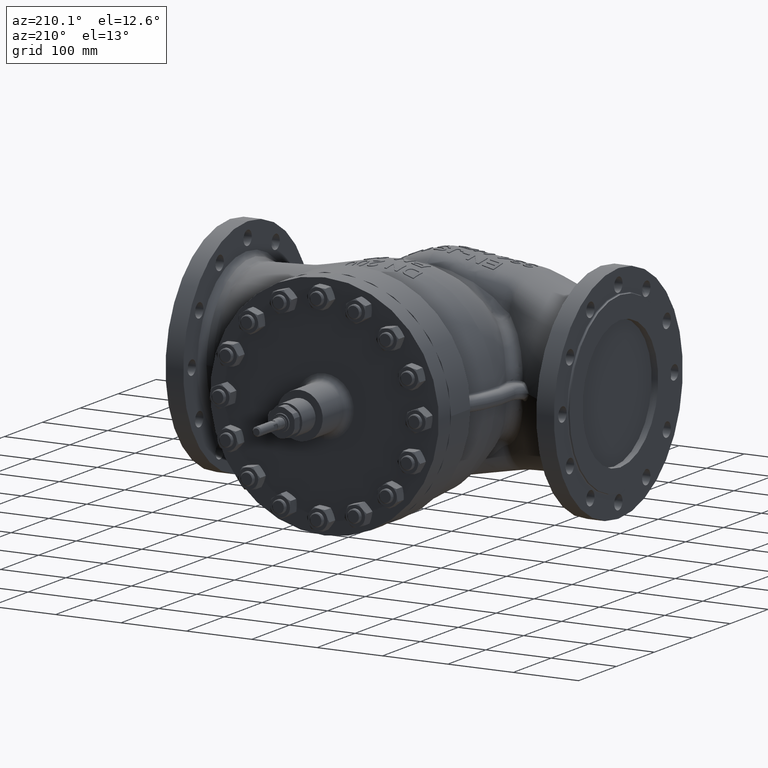
[diagram: clean part render]
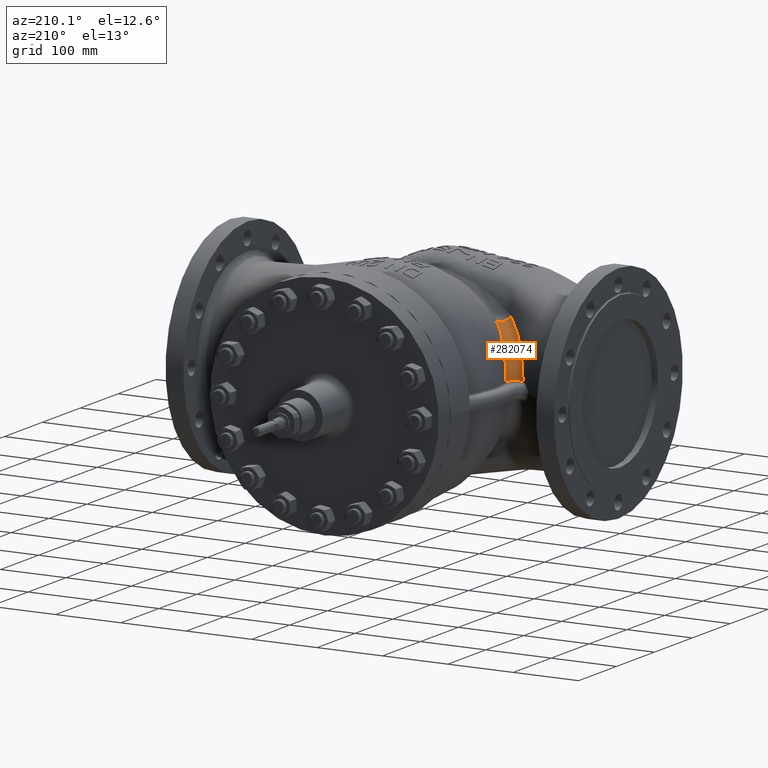
[diagram: same view with one face highlighted and labeled with its STEP entity id]
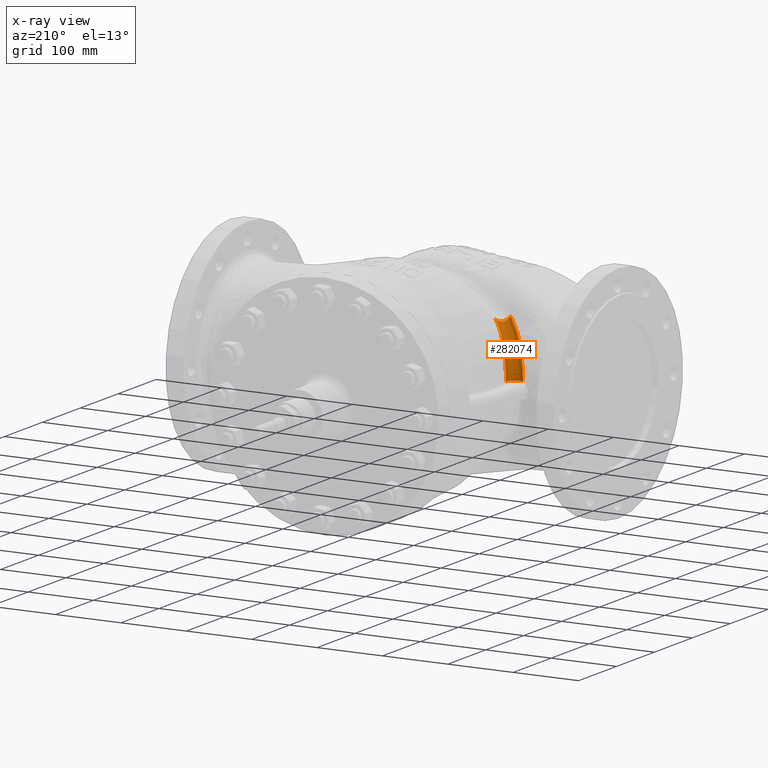
[diagram: x-ray of the same camera — body ghosted, the highlighted face saturated]
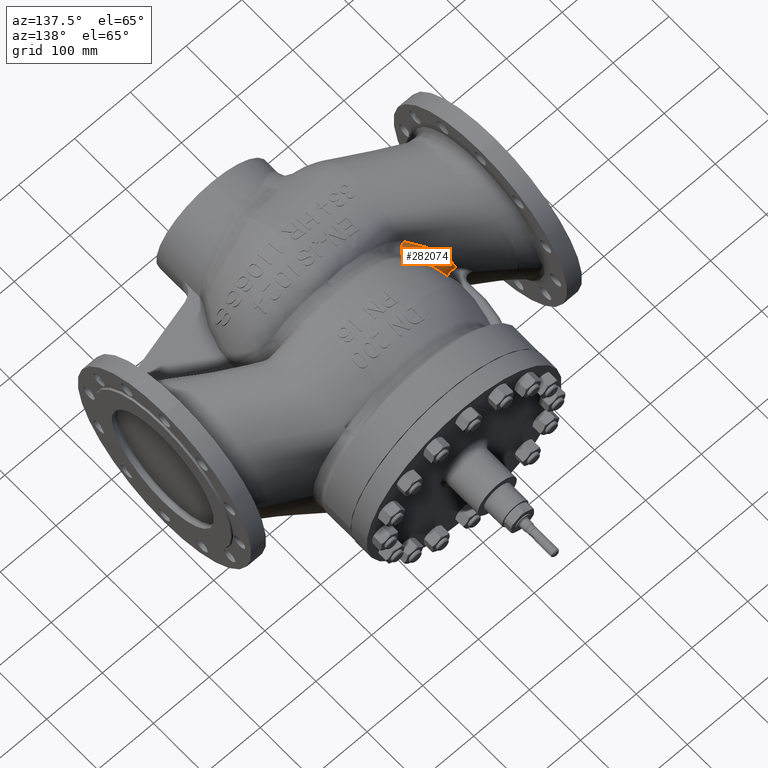
[diagram: same view with one face highlighted and labeled with its STEP entity id]
A machine part, auxiliary view. The second image highlights one B-rep face of the part: STEP entity #282074.
The next image is the same camera in x-ray: the body ghosted, the highlighted face saturated — about 0% of this face is hidden behind the body in this view.
A second angle (auxiliary view) of the same face is appended — the face is thin or edge-on in the first view.
In plain terms, the highlighted face is a freeform B-spline surface patch.
Its self-contained STEP definition (entity closure, byte-faithful):
#1215 = CARTESIAN_POINT ( 'NONE',  ( -180.3479766835050100, 50.38715588373963800, 13.28816058952758400 ) ) ;
#2176 = CARTESIAN_POINT ( 'NONE',  ( -159.7834420127899800, 60.20306548285637400, 22.08467995966791300 ) ) ;
#3145 = CARTESIAN_POINT ( 'NONE',  ( -153.2054179732000700, 29.33816680043337800, 19.33845226794689200 ) ) ;
#3487 = CARTESIAN_POINT ( 'NONE',  ( -144.1266888484710500, 9.991148496980958500, 78.27925038295146000 ) ) ;
#4107 = CARTESIAN_POINT ( 'NONE',  ( -171.8155502241295700, 39.32460806516679200, 43.40238094748084300 ) ) ;
#4440 = CARTESIAN_POINT ( 'NONE',  ( -175.1186694830489000, 43.48960524587761300, 35.23638534196722100 ) ) ;
#4626 = ORIENTED_EDGE ( 'NONE', *, *, #18092, .T. ) ;
#5063 = CARTESIAN_POINT ( 'NONE',  ( -143.3631512330945800, 39.79322070804398200, 60.21054218344698900 ) ) ;
#6007 = CARTESIAN_POINT ( 'NONE',  ( -138.5779072110121600, 15.59329231150622900, 48.90391738290375700 ) ) ;
#6943 = CARTESIAN_POINT ( 'NONE',  ( -138.6470128244672800, 5.139872020293034400, 82.49197622258429900 ) ) ;
#7589 = CARTESIAN_POINT ( 'NONE',  ( -168.8684930671474300, 48.52494461211533400, 12.40934267990686000 ) ) ;
#8554 = CARTESIAN_POINT ( 'NONE',  ( -178.3430433808405300, 49.12611881680794600, 12.72877746141875500 ) ) ;
#10481 = CARTESIAN_POINT ( 'NONE',  ( -153.3875262802788500, 51.68104859443891300, 42.86651872847378500 ) ) ;
#11415 = CARTESIAN_POINT ( 'NONE',  ( -117.9340538589789800, 15.67307692307691100, 83.80810351950101700 ) ) ;
#18092 = EDGE_CURVE ( 'NONE', #58486, #269337, #18992, .T. ) ;
#18890 = CARTESIAN_POINT ( 'NONE',  ( -162.4809874218565000, 53.92860186335204300, 12.45050690650131600 ) ) ;
#18992 = CIRCLE ( 'NONE', #157887, 12.00000000000000200 ) ;
#23397 = CARTESIAN_POINT ( 'NONE',  ( -155.2094688941950300, 30.87142330802406000, 7.917846680196541700 ) ) ;
#24353 = CARTESIAN_POINT ( 'NONE',  ( -178.7799347780740800, 48.27349888101833400, 22.56489009037397500 ) ) ;
#25309 = CARTESIAN_POINT ( 'NONE',  ( -156.8327896092210400, 56.18681528265374700, 33.51273670518541800 ) ) ;
#25643 = CARTESIAN_POINT ( 'NONE',  ( -152.0743515830948500, 17.52975695065136500, 71.15273135393297800 ) ) ;
#26262 = CARTESIAN_POINT ( 'NONE',  ( -148.4070973426689500, 24.92606653098632600, 33.02878223004302100 ) ) ;
#26598 = CARTESIAN_POINT ( 'NONE',  ( -176.1098677754228300, 44.76502405007728000, 32.35386135223410500 ) ) ;
#27220 = CARTESIAN_POINT ( 'NONE',  ( -160.4465939503597800, 26.22247780060055100, 61.69578560818541700 ) ) ;
#28170 = CARTESIAN_POINT ( 'NONE',  ( -136.2515450962695000, 32.22387583878638400, 68.82356084104016200 ) ) ;
#29114 = CARTESIAN_POINT ( 'NONE',  ( -122.4128148510222600, 1.428652267640010000, 64.02284708773029800 ) ) ;
#29753 = CARTESIAN_POINT ( 'NONE',  ( -170.6258148928858700, 48.04476294129655400, 12.44471879218044400 ) ) ;
#30703 = CARTESIAN_POINT ( 'NONE',  ( -179.9150564730884400, 50.07371466241600900, 12.81166801907863800 ) ) ;
#30875 = CARTESIAN_POINT ( 'NONE',  ( -132.4516614370879800, 0.001687900306969816700, 86.63877724973102100 ) ) ;
#31680 = CARTESIAN_POINT ( 'NONE',  ( -160.6795266716969200, 61.45711379880834400, 16.82380083184206800 ) ) ;
#32639 = CARTESIAN_POINT ( 'NONE',  ( -148.5292340386872400, 45.70198267988750000, 52.44726930657518700 ) ) ;
#37479 = VERTEX_POINT ( 'NONE', #88756 ) ;
#40133 = CARTESIAN_POINT ( 'NONE',  ( -161.2007471577244400, 62.19297423156112400, 12.76785714285713300 ) ) ;
#41071 = CARTESIAN_POINT ( 'NONE',  ( -163.4906663851018600, 52.40968864994547300, 12.41317957880236200 ) ) ;
#42731 = CARTESIAN_POINT ( 'NONE',  ( -155.3180422184609600, 30.93905565759273200, 6.718585138934788100 ) ) ;
#45575 = CARTESIAN_POINT ( 'NONE',  ( -160.7873182583042500, 61.60883678463885400, 16.08000321875246600 ) ) ;
#45912 = CARTESIAN_POINT ( 'NONE',  ( -117.9340538589789800, 15.67307692307691100, 83.80810351950101700 ) ) ;
#46543 = CARTESIAN_POINT ( 'NONE',  ( -154.1059312151297700, 30.07912355717853000, 15.38228189510913400 ) ) ;
#47499 = CARTESIAN_POINT ( 'NONE',  ( -175.4698141465642000, 43.93976179808608900, 34.24769836162699500 ) ) ;
#47839 = CARTESIAN_POINT ( 'NONE',  ( -158.1445311512953800, 23.75617767312099100, 64.53617280797728000 ) ) ;
#48461 = CARTESIAN_POINT ( 'NONE',  ( -148.7024140470287500, 45.90786208504341900, 52.15156545383771900 ) ) ;
#48792 = CARTESIAN_POINT ( 'NONE',  ( -177.5906363416353000, 46.69679908961943200, 27.44464781388240500 ) ) ;
#49404 = CARTESIAN_POINT ( 'NONE',  ( -142.2516700723972500, 19.04693861859629700, 43.82450049138377300 ) ) ;
#50353 = CARTESIAN_POINT ( 'NONE',  ( -152.5683525912685400, 18.01779554282043000, 70.66485245563461600 ) ) ;
#51312 = CARTESIAN_POINT ( 'NONE',  ( -117.9340538589788700, 15.67307692307677600, 83.80810351950120200 ) ) ;
#51948 = CARTESIAN_POINT ( 'NONE',  ( -172.4510506716715400, 47.83568369276105900, 12.49405095766228000 ) ) ;
#53866 = CARTESIAN_POINT ( 'NONE',  ( -160.0298336935600800, 60.54658429733443400, 20.80090350936018600 ) ) ;
#54818 = CARTESIAN_POINT ( 'NONE',  ( -144.7366348036265200, 41.32545540039900100, 58.30644604353916800 ) ) ;
#58486 = VERTEX_POINT ( 'NONE', #30875 ) ;
#62847 = FACE_OUTER_BOUND ( 'NONE', #246393, .T. ) ;
#63213 = CARTESIAN_POINT ( 'NONE',  ( -164.2961564273467700, 51.49798719669892200, 12.39714917511678000 ) ) ;
#67726 = CARTESIAN_POINT ( 'NONE',  ( -179.9078691246944900, 49.79041111488193400, 16.42980403514777200 ) ) ;
#68676 = CARTESIAN_POINT ( 'NONE',  ( -158.4635875605569300, 58.38491057841316900, 27.89189479009171500 ) ) ;
#69013 = CARTESIAN_POINT ( 'NONE',  ( -132.4516614370879800, 0.001687900306969816700, 86.63877724973102100 ) ) ;
#69640 = CARTESIAN_POINT ( 'NONE',  ( -152.6626358064787300, 28.86840829936241400, 21.36799606240467900 ) ) ;
#69984 = CARTESIAN_POINT ( 'NONE',  ( -161.5669759651073600, 27.43681410477034500, 60.26223010793162900 ) ) ;
#70608 = CARTESIAN_POINT ( 'NONE',  ( -166.3837186693607200, 32.83865420681701200, 53.36715298105102100 ) ) ;
#70934 = CARTESIAN_POINT ( 'NONE',  ( -179.0393722107208400, 48.62087443524468000, 21.34507913836189300 ) ) ;
#71556 = CARTESIAN_POINT ( 'NONE',  ( -141.7888832083440600, 38.06439177008903100, 62.29234059785221700 ) ) ;
#72507 = CARTESIAN_POINT ( 'NONE',  ( -132.2129688685410300, 9.813951181967002700, 55.91077812952492800 ) ) ;
#73461 = CARTESIAN_POINT ( 'NONE',  ( -132.4516614370878400, 0.001687900306867468100, 86.63877724973114900 ) ) ;
#74098 = CARTESIAN_POINT ( 'NONE',  ( -174.2737362863038900, 47.90678598658370600, 12.55470677498293400 ) ) ;
#76030 = CARTESIAN_POINT ( 'NONE',  ( -158.7872049129185000, 58.82830868330283600, 26.59822500870177800 ) ) ;
#76977 = CARTESIAN_POINT ( 'NONE',  ( -141.6551727414009700, 37.91302619315927600, 62.48305714513531900 ) ) ;
#84463 = CARTESIAN_POINT ( 'NONE',  ( -161.0621320534325800, 58.25435361572336000, 12.59891942707162800 ) ) ;
#85396 = CARTESIAN_POINT ( 'NONE',  ( -164.9595570097008000, 50.85873722524208800, 12.38914606154176700 ) ) ;
#88756 = CARTESIAN_POINT ( 'NONE',  ( -180.3976527844518500, 50.45481075082450000, 12.83988410853364400 ) ) ;
#89897 = CARTESIAN_POINT ( 'NONE',  ( -155.0049800758213500, 30.73722982758867800, 9.744097704359436600 ) ) ;
#90857 = CARTESIAN_POINT ( 'NONE',  ( -177.2982787422711500, 46.31180583757309700, 28.49881736111096600 ) ) ;
#91813 = CARTESIAN_POINT ( 'NONE',  ( -154.9800223921489200, 53.73438469538745500, 38.99895523456537900 ) ) ;
#92153 = CARTESIAN_POINT ( 'NONE',  ( -165.8203446573303100, 32.18921040611650900, 54.25361503619170400 ) ) ;
#92778 = CARTESIAN_POINT ( 'NONE',  ( -144.7833596141483700, 21.45671205143820300, 39.84480481376211000 ) ) ;
#93121 = CARTESIAN_POINT ( 'NONE',  ( -179.7950724220397700, 49.63795024696928200, 17.14087350314103700 ) ) ;
#93727 = CARTESIAN_POINT ( 'NONE',  ( -158.6998124076915800, 24.34999173351638300, 63.85626781705022400 ) ) ;
#93914 = CARTESIAN_POINT ( 'NONE',  ( -126.5110759578138000, 9.903846153846140900, 89.90323832091930000 ) ) ;
#94671 = CARTESIAN_POINT ( 'NONE',  ( -128.9009625690894700, 25.11987957820425200, 75.78490915468468400 ) ) ;
#96262 = CARTESIAN_POINT ( 'NONE',  ( -175.7723256625213300, 48.18767849553180600, 12.61297781198906200 ) ) ;
#98204 = CARTESIAN_POINT ( 'NONE',  ( -157.5149021586219400, 57.10096359859005600, 31.28552426226215000 ) ) ;
#99146 = CARTESIAN_POINT ( 'NONE',  ( -136.1434096329511200, 32.11506899093920000, 68.93631935950256200 ) ) ;
#106626 = CARTESIAN_POINT ( 'NONE',  ( -161.2153844611611100, 57.34731769123676800, 12.56403828059906000 ) ) ;
#107551 = CARTESIAN_POINT ( 'NONE',  ( -166.1525353773770900, 49.91039580817884800, 12.38421036985466700 ) ) ;
#111115 = CARTESIAN_POINT ( 'NONE',  ( -180.4684105633748200, 50.55108137989010000, 12.23815342538768600 ) ) ;
#112076 = CARTESIAN_POINT ( 'NONE',  ( -160.1566499780059600, 60.72356865476073300, 20.10771063331999600 ) ) ;
#113014 = CARTESIAN_POINT ( 'NONE',  ( -153.3712329411204100, 29.47851198196893600, 18.67039743029727800 ) ) ;
#113975 = CARTESIAN_POINT ( 'NONE',  ( -173.3944806279652900, 41.29275387168072300, 39.86353591752360600 ) ) ;
#114309 = CARTESIAN_POINT ( 'NONE',  ( -171.3444843253481600, 38.74584922318384600, 44.39114917251068700 ) ) ;
#114931 = CARTESIAN_POINT ( 'NONE',  ( -144.8946588526381200, 41.50411991652802600, 58.07833206339863400 ) ) ;
#115259 = CARTESIAN_POINT ( 'NONE',  ( -180.2673602991405100, 50.27761197585680000, 13.92127234249587500 ) ) ;
#115870 = CARTESIAN_POINT ( 'NONE',  ( -140.8974338456176000, 17.76874810993552200, 45.76124957179435900 ) ) ;
#116056 = DIRECTION ( 'NONE',  ( 0.6298090491019998600, 0.7767499994652300500, 0.0000000000000000000 ) ) ;
#116822 = CARTESIAN_POINT ( 'NONE',  ( -144.4658471083690800, 10.29819659513314500, 78.00582562064542500 ) ) ;
#117458 = CARTESIAN_POINT ( 'NONE',  ( -167.1951309686367000, 49.28632024009867500, 12.38954670776101200 ) ) ;
#118413 = CARTESIAN_POINT ( 'NONE',  ( -176.6564543434418500, 48.44097392623759600, 12.65045676932752400 ) ) ;
#119397 = CARTESIAN_POINT ( 'NONE',  ( -161.2007471577244400, 62.19297423156112400, 12.76785714285713300 ) ) ;
#120344 = CARTESIAN_POINT ( 'NONE',  ( -156.6612831835422200, 55.95836037208317000, 34.04506522811832500 ) ) ;
#121292 = CARTESIAN_POINT ( 'NONE',  ( -128.8371863647057000, 25.06153938051620500, 75.83808005664320700 ) ) ;
#128768 = CARTESIAN_POINT ( 'NONE',  ( -161.5119861094113400, 56.16894829944750700, 12.52113149879662800 ) ) ;
#133255 = CARTESIAN_POINT ( 'NONE',  ( -155.2676067744788200, 30.90802859945440400, 7.313063797390730000 ) ) ;
#134208 = CARTESIAN_POINT ( 'NONE',  ( -179.1991623019120000, 48.83512457342823900, 20.54498844587274000 ) ) ;
#134552 = CARTESIAN_POINT ( 'NONE',  ( -135.5097867521798200, 2.480334358670631900, 84.68534772320433000 ) ) ;
#135173 = CARTESIAN_POINT ( 'NONE',  ( -157.4053597618729700, 56.95347241952926300, 31.65604497229455900 ) ) ;
#135511 = CARTESIAN_POINT ( 'NONE',  ( -138.4560194172017900, 4.977574209977694500, 82.62610955185240900 ) ) ;
#136139 = CARTESIAN_POINT ( 'NONE',  ( -150.7092810535071700, 27.10087437089025300, 27.52011680339884600 ) ) ;
#136474 = CARTESIAN_POINT ( 'NONE',  ( -174.7691688291479600, 43.04334157817066900, 36.18770273812499700 ) ) ;
#137089 = CARTESIAN_POINT ( 'NONE',  ( -162.1474245268140600, 28.07478190050257500, 59.48686818009286300 ) ) ;
#138037 = CARTESIAN_POINT ( 'NONE',  ( -138.5423560219365100, 34.57939891716546300, 66.31463115056736500 ) ) ;
#138987 = CARTESIAN_POINT ( 'NONE',  ( -125.0024815630177700, 3.587022821690302600, 62.12959871630799600 ) ) ;
#139617 = CARTESIAN_POINT ( 'NONE',  ( -168.0184218954939600, 48.87918205514639400, 12.39777632303738200 ) ) ;
#140574 = CARTESIAN_POINT ( 'NONE',  ( -177.7946741003423800, 48.86657245488488900, 12.70209069009589200 ) ) ;
#141557 = CARTESIAN_POINT ( 'NONE',  ( -161.0872965630092900, 62.03227091187000800, 13.78730171666112400 ) ) ;
#142498 = CARTESIAN_POINT ( 'NONE',  ( -154.8000919324024100, 53.50082043513030800, 39.45862092801324600 ) ) ;
#143432 = CARTESIAN_POINT ( 'NONE',  ( -120.8126671419195600, 18.00713124648774900, 81.96659679523774900 ) ) ;
#150934 = CARTESIAN_POINT ( 'NONE',  ( -162.1925436505034400, 54.47679422059725600, 12.46632465324018900 ) ) ;
#155434 = CARTESIAN_POINT ( 'NONE',  ( -161.0570266834559200, 61.98941832273513300, 14.03686753874897200 ) ) ;
#156392 = CARTESIAN_POINT ( 'NONE',  ( -154.5680245164042800, 30.43074691153953600, 12.83561455351727300 ) ) ;
#157342 = CARTESIAN_POINT ( 'NONE',  ( -176.1115541911709100, 44.76714351561506100, 32.34812990163739200 ) ) ;
#157679 = CARTESIAN_POINT ( 'NONE',  ( -146.8512705159721500, 12.50748792890716700, 75.99179693150814800 ) ) ;
#157887 = AXIS2_PLACEMENT_3D ( 'NONE', #93914, #248160, #116056 ) ;
#158307 = CARTESIAN_POINT ( 'NONE',  ( -150.4300239956703500, 47.99849291399700500, 49.02825346650348600 ) ) ;
#158642 = CARTESIAN_POINT ( 'NONE',  ( -175.7886879923503000, 44.35003082266880600, 33.32026099993839100 ) ) ;
#159264 = CARTESIAN_POINT ( 'NONE',  ( -142.6905347183500800, 19.46306459872356600, 43.16853078623709200 ) ) ;
#160215 = CARTESIAN_POINT ( 'NONE',  ( -155.1017366173000200, 20.57329640056231300, 68.04089001466859100 ) ) ;
#160889 = CARTESIAN_POINT ( 'NONE',  ( -161.2007471577244400, 62.19297423156112400, 12.76785714285713300 ) ) ;
#161156 = CARTESIAN_POINT ( 'NONE',  ( -120.8289539327463400, 18.02033699826826000, 81.95617780740474200 ) ) ;
#161795 = CARTESIAN_POINT ( 'NONE',  ( -169.4468068616371900, 48.33510196503042500, 12.41957429066289700 ) ) ;
#162752 = CARTESIAN_POINT ( 'NONE',  ( -179.4026409071396700, 49.72894343424744100, 12.78352279399643100 ) ) ;
#163736 = CARTESIAN_POINT ( 'NONE',  ( -160.9597695516135600, 61.85200380411414000, 14.80671181137630100 ) ) ;
#164692 = CARTESIAN_POINT ( 'NONE',  ( -150.2522506665664800, 47.78195563584944900, 49.36112491845760500 ) ) ;
#165735 =( BOUNDED_SURFACE ( )  B_SPLINE_SURFACE ( 3, 2, ( 
 ( #243178, #42731, #111115 ),
 ( #265389, #133255, #1215 ),
 ( #155434, #23397, #177652 ),
 ( #45575, #199844, #67726 ),
 ( #221990, #89897, #244145 ),
 ( #112076, #266349, #134208 ),
 ( #2176, #156392, #24353 ),
 ( #178611, #46543, #200800 ),
 ( #68676, #222944, #90857 ),
 ( #245101, #113014, #267301 ),
 ( #135173, #3145, #157342 ),
 ( #25309, #179568, #47499 ),
 ( #201754, #69640, #223909 ),
 ( #91813, #246063, #113975 ),
 ( #268265, #136139, #4107 ),
 ( #158307, #26262, #180528 ),
 ( #48461, #202703, #70608 ),
 ( #224864, #92778, #247020 ),
 ( #114931, #269228, #137089 ),
 ( #5063, #159264, #27220 ),
 ( #181479, #49404, #203657 ),
 ( #71556, #225815, #93727 ),
 ( #247976, #115870, #270166 ),
 ( #138037, #6007, #160215 ),
 ( #28170, #182422, #50353 ),
 ( #204606, #72507, #226772 ),
 ( #94671, #248919, #116822 ),
 ( #271110, #138987, #6943 ),
 ( #161156, #29114, #183385 ),
 ( #51312, #205558, #73461 ) ),
 .UNSPECIFIED., .F., .F., .F. ) 
 B_SPLINE_SURFACE_WITH_KNOTS ( ( 4, 2, 2, 2, 2, 2, 2, 2, 2, 2, 2, 2, 2, 2, 4 ),
 ( 3, 3 ),
 ( 0.1316212356389877000, 0.1349323193199942200, 0.1382434030010007700, 0.1448655703630138400, 0.1514877377250269400, 0.1547988214060334600, 0.1581099050870400100, 0.1713542398110661800, 0.1845985745350923200, 0.1912207418971054200, 0.1945318255781119400, 0.1978429092591184900, 0.2110872439831446600, 0.2243315787071708000, 0.2375759134311969700 ),
 ( 0.0000000000000000000, 1.000000000000000000 ),
 .UNSPECIFIED. ) 
 GEOMETRIC_REPRESENTATION_ITEM ( )  RATIONAL_B_SPLINE_SURFACE ( (
 ( 1.000000000000000000, 0.3476234255886354000, 1.000000000000000000),
 ( 1.000000000000000000, 0.3481642800209126000, 1.000000000000000000),
 ( 1.000000000000000000, 0.3487762868396809300, 1.000000000000000000),
 ( 1.000000000000000000, 0.3501196426599220700, 1.000000000000000000),
 ( 1.000000000000000000, 0.3508516694731247400, 1.000000000000000000),
 ( 1.000000000000000000, 0.3532158894621083000, 1.000000000000000000),
 ( 1.000000000000000000, 0.3550161560823484300, 1.000000000000000000),
 ( 1.000000000000000000, 0.3589982140685910000, 1.000000000000000000),
 ( 1.000000000000000000, 0.3611764129172128600, 1.000000000000000000),
 ( 1.000000000000000000, 0.3646558422352353400, 1.000000000000000000),
 ( 1.000000000000000000, 0.3658517025297524600, 1.000000000000000000),
 ( 1.000000000000000000, 0.3683066405815507700, 1.000000000000000000),
 ( 1.000000000000000000, 0.3695672578563885500, 1.000000000000000000),
 ( 1.000000000000000000, 0.3759894496026080500, 1.000000000000000000),
 ( 1.000000000000000000, 0.3814327869563349800, 1.000000000000000000),
 ( 1.000000000000000000, 0.3923790101738503500, 1.000000000000000000),
 ( 1.000000000000000000, 0.3978933520262029100, 1.000000000000000000),
 ( 1.000000000000000000, 0.4057679273601823000, 1.000000000000000000),
 ( 1.000000000000000000, 0.4083306785390148400, 1.000000000000000000),
 ( 1.000000000000000000, 0.4120408131744464600, 1.000000000000000000),
 ( 1.000000000000000000, 0.4132543009954607300, 1.000000000000000000),
 ( 1.000000000000000000, 0.4156173479968257600, 1.000000000000000000),
 ( 1.000000000000000000, 0.4167686165881430700, 1.000000000000000000),
 ( 1.000000000000000000, 0.4223617577243533000, 1.000000000000000000),
 ( 1.000000000000000000, 0.4263125816160658900, 1.000000000000000000),
 ( 1.000000000000000000, 0.4328881344692862000, 1.000000000000000000),
 ( 1.000000000000000000, 0.4355185476899166600, 1.000000000000000000),
 ( 1.000000000000000000, 0.4391414787725839700, 1.000000000000000000),
 ( 1.000000000000000000, 0.4401429956737774000, 1.000000000000000000),
 ( 1.000000000000000000, 0.4402373147464718800, 1.000000000000000000) ) ) 
 REPRESENTATION_ITEM ( '' )  SURFACE ( )  );
#173144 = CARTESIAN_POINT ( 'NONE',  ( -163.1294311213098400, 52.89718178514214500, 12.42401068078140700 ) ) ;
#177652 = CARTESIAN_POINT ( 'NONE',  ( -180.2110516990838700, 50.20112558681501700, 14.34228232850509600 ) ) ;
#178611 = CARTESIAN_POINT ( 'NONE',  ( -158.9369219931723200, 59.03377253588101300, 25.97678562681425200 ) ) ;
#179568 = CARTESIAN_POINT ( 'NONE',  ( -152.8511354851575000, 29.03311613251820600, 20.68699622602208200 ) ) ;
#179907 = CARTESIAN_POINT ( 'NONE',  ( -154.5729647565215100, 20.03585329645808600, 68.60142172973033300 ) ) ;
#180528 = CARTESIAN_POINT ( 'NONE',  ( -168.3103878443624500, 35.09789882386032600, 50.15463135138034500 ) ) ;
#180865 = CARTESIAN_POINT ( 'NONE',  ( -177.0316701302502600, 45.96224936836507900, 29.42890958065437700 ) ) ;
#181479 = CARTESIAN_POINT ( 'NONE',  ( -142.8430461236482600, 39.21801364375965400, 60.91240231190750600 ) ) ;
#182422 = CARTESIAN_POINT ( 'NONE',  ( -136.5499723259639800, 13.71955923517737500, 51.33079095617141300 ) ) ;
#183385 = CARTESIAN_POINT ( 'NONE',  ( -135.6127139855715000, 2.563758089742364600, 84.61960120199192700 ) ) ;
#184011 = CARTESIAN_POINT ( 'NONE',  ( -171.2265093929433400, 47.94426766262866100, 12.45963229881751900 ) ) ;
#184965 = CARTESIAN_POINT ( 'NONE',  ( -180.3976527844518500, 50.45481075082450000, 12.83988410853364400 ) ) ;
#185945 = CARTESIAN_POINT ( 'NONE',  ( -160.5265518484390300, 61.24212347588103700, 17.82407647892282300 ) ) ;
#186901 = CARTESIAN_POINT ( 'NONE',  ( -145.7137323881816500, 42.43770193116686300, 56.86782041375400400 ) ) ;
#191616 = CARTESIAN_POINT ( 'NONE',  ( -166.9297035937256600, 49.43504800736973000, 12.38771011275302000 ) ) ;
#195326 = CARTESIAN_POINT ( 'NONE',  ( -164.0878396073310100, 51.72061898397904400, 12.40068612226045800 ) ) ;
#199222 = VERTEX_POINT ( 'NONE', #160889 ) ;
#199844 = CARTESIAN_POINT ( 'NONE',  ( -155.0781225690555500, 30.78599541408331300, 9.133129339615992500 ) ) ;
#200800 = CARTESIAN_POINT ( 'NONE',  ( -177.8294979922822600, 47.01188943884674400, 26.54166377896098100 ) ) ;
#201754 = CARTESIAN_POINT ( 'NONE',  ( -156.5337087751323400, 55.78867291819627600, 34.43498800811247000 ) ) ;
#202087 = CARTESIAN_POINT ( 'NONE',  ( -159.3056119167604500, 24.98970802223029600, 63.14120759144942200 ) ) ;
#202703 = CARTESIAN_POINT ( 'NONE',  ( -147.0794924900585000, 23.65399232375984800, 35.77401417364089300 ) ) ;
#203042 = CARTESIAN_POINT ( 'NONE',  ( -178.5945771482552700, 48.02616984801491600, 23.40277356420538600 ) ) ;
#203657 = CARTESIAN_POINT ( 'NONE',  ( -159.8692836132596500, 25.59958025828215600, 62.42364744534873500 ) ) ;
#204606 = CARTESIAN_POINT ( 'NONE',  ( -131.4308767286583500, 27.49418664846466600, 73.55880395132260200 ) ) ;
#205558 = CARTESIAN_POINT ( 'NONE',  ( -119.7094360156640800, -0.7585321664657257400, 65.75678220770262800 ) ) ;
#206205 = CARTESIAN_POINT ( 'NONE',  ( -173.0621957602543300, 47.82894201378767500, 12.51320568468640800 ) ) ;
#208124 = CARTESIAN_POINT ( 'NONE',  ( -159.6483575800222900, 60.01551501490388300, 22.75348330937595900 ) ) ;
#209076 = CARTESIAN_POINT ( 'NONE',  ( -142.7045221855294100, 39.05992158795537300, 61.11807275704213500 ) ) ;
#215759 = B_SPLINE_CURVE_WITH_KNOTS ( 'NONE', 3,
 ( #119397, #141557, #163736, #31680, #185945, #53866, #208124, #76030, #230292, #98204, #252428, #120344, #274635, #142498, #10481, #164692, #32639, #186901, #54818, #209076, #76977, #231245, #99146, #253384, #121292, #275580, #143432, #11415 ),
 .UNSPECIFIED., .F., .F.,
 ( 4, 2, 2, 2, 2, 2, 2, 2, 2, 2, 2, 2, 2, 4 ),
 ( 0.1234883742973407700, 0.1265481610326728300, 0.1296079477680048800, 0.1357275212386690200, 0.1418470947093331300, 0.1449068814446652100, 0.1479666681799972600, 0.1602058151213255900, 0.1724449620626538900, 0.1785645355333180300, 0.1846841090039821900, 0.1969232559453104600, 0.2091624028866387000, 0.2214015498279669500 ),
 .UNSPECIFIED. ) ;
#216548 = CARTESIAN_POINT ( 'NONE',  ( -160.9034562536417100, 59.77547434339623300, 12.65970724192053300 ) ) ;
#217480 = CARTESIAN_POINT ( 'NONE',  ( -164.7317644420460000, 51.06718724860990500, 12.39137743061255400 ) ) ;
#221990 = CARTESIAN_POINT ( 'NONE',  ( -160.6393075901451900, 61.40050650089958100, 17.09308251242544700 ) ) ;
#222944 = CARTESIAN_POINT ( 'NONE',  ( -153.8386581074596200, 29.86722196142599700, 16.67838352504718800 ) ) ;
#223909 = CARTESIAN_POINT ( 'NONE',  ( -175.1347064148422100, 43.51005801503985300, 35.19150584479602600 ) ) ;
#224245 = CARTESIAN_POINT ( 'NONE',  ( -162.6600982863660100, 28.64265418704441800, 58.78720127430834500 ) ) ;
#224864 = CARTESIAN_POINT ( 'NONE',  ( -145.8760460319717500, 42.62366226037865100, 56.62337300976931000 ) ) ;
#225195 = CARTESIAN_POINT ( 'NONE',  ( -179.6173180988745300, 49.39805397790764400, 18.19933331944770000 ) ) ;
#225815 = CARTESIAN_POINT ( 'NONE',  ( -141.3554151996649800, 18.20006957337639300, 45.12027619126028800 ) ) ;
#226772 = CARTESIAN_POINT ( 'NONE',  ( -147.2504550618694500, 12.88031143904852800, 75.64749568882774600 ) ) ;
#228093 = ORIENTED_EDGE ( 'NONE', *, *, #283713, .F. ) ;
#228356 = CARTESIAN_POINT ( 'NONE',  ( -174.8755760645053700, 47.99125270500739000, 12.57709495445712000 ) ) ;
#230292 = CARTESIAN_POINT ( 'NONE',  ( -158.3075128293801900, 58.17213505918235200, 28.49037219689132900 ) ) ;
#231245 = CARTESIAN_POINT ( 'NONE',  ( -138.4203428953434800, 34.45285216780845200, 66.45166253907721900 ) ) ;
#235223 = ORIENTED_EDGE ( 'NONE', *, *, #252502, .T. ) ;
#237783 = CARTESIAN_POINT ( 'NONE',  ( -160.9597048918878400, 60.98694345669046200, 12.71224175248177900 ) ) ;
#238708 = CARTESIAN_POINT ( 'NONE',  ( -161.1058107304906200, 57.94889625728559700, 12.58698104830194400 ) ) ;
#239634 = CARTESIAN_POINT ( 'NONE',  ( -165.6597975181059000, 50.26601109824835600, 12.38454874869266400 ) ) ;
#242112 = B_SPLINE_CURVE_WITH_KNOTS ( 'NONE', 3,
 ( #40133, #237783, #216548, #84463, #238708, #106626, #260888, #128768, #283077, #150934, #18890, #173144, #41071, #195326, #63213, #217480, #85396, #239634, #107551, #191616, #117458, #271751, #139617, #7589, #161795, #29753, #184011, #51948, #206205, #74098, #228356, #96262, #250512, #118413, #272702, #140574, #8554, #162752, #30703, #184965 ),
 .UNSPECIFIED., .F., .F.,
 ( 4, 2, 2, 2, 2, 2, 2, 2, 2, 2, 2, 2, 2, 2, 2, 2, 2, 2, 2, 4 ),
 ( 4.860322466063819700E-017, 0.003641165335659542300, 0.004551456669574393900, 0.005461748003489246000, 0.007282330671318928500, 0.009102913339148610900, 0.01092349600697829400, 0.01183378734089314200, 0.01274407867480799100, 0.01456466134263767600, 0.01547495267655254900, 0.01638524401046742200, 0.01820582667829725000, 0.02002640934612708000, 0.02184699201395690800, 0.02366757468178673100, 0.02457786601570164900, 0.02548815734961656200, 0.02730874001744639000, 0.02912932268527621300 ),
 .UNSPECIFIED. ) ;
#243178 = CARTESIAN_POINT ( 'NONE',  ( -161.2859066083997800, 62.31367383375296500, 11.97749603465939700 ) ) ;
#244145 = CARTESIAN_POINT ( 'NONE',  ( -179.7415166927898200, 49.56559599364930300, 17.46488648308823600 ) ) ;
#245101 = CARTESIAN_POINT ( 'NONE',  ( -157.6792222883443300, 57.32248025407626800, 30.72051679353968000 ) ) ;
#246063 = CARTESIAN_POINT ( 'NONE',  ( -151.6733810368926600, 27.99195108671282400, 24.75766197970097000 ) ) ;
#246393 = EDGE_LOOP ( 'NONE', ( #250124, #235223, #228093, #4626 ) ) ;
#246408 = CARTESIAN_POINT ( 'NONE',  ( -167.7713826045439300, 34.46219678442031400, 51.08452965934594700 ) ) ;
#247020 = CARTESIAN_POINT ( 'NONE',  ( -163.2384977663997200, 29.28625611168221000, 57.98256083296401900 ) ) ;
#247359 = CARTESIAN_POINT ( 'NONE',  ( -180.1199367743086800, 50.07751558098560500, 15.00337164941982100 ) ) ;
#247976 = CARTESIAN_POINT ( 'NONE',  ( -141.2541317441945200, 37.48519844460237500, 62.97139709212589100 ) ) ;
#248160 = DIRECTION ( 'NONE',  ( 0.6956060174390328300, -0.5640154035333439000, 0.4449931382389252800 ) ) ;
#248255 = EDGE_CURVE ( 'NONE', #199222, #269337, #215759, .T. ) ;
#248919 = CARTESIAN_POINT ( 'NONE',  ( -129.8947691237332500, 7.772955682751087300, 58.08223353391702700 ) ) ;
#250124 = ORIENTED_EDGE ( 'NONE', *, *, #248255, .F. ) ;
#250512 = CARTESIAN_POINT ( 'NONE',  ( -176.0709464359045200, 48.26513083625914600, 12.62535762741023900 ) ) ;
#252428 = CARTESIAN_POINT ( 'NONE',  ( -157.2385066019796200, 56.72941094587669400, 32.21005735739365200 ) ) ;
#252502 = EDGE_CURVE ( 'NONE', #199222, #37479, #242112, .T. ) ;
#253384 = CARTESIAN_POINT ( 'NONE',  ( -131.3518571435358800, 27.41947865309824900, 73.62962325559111300 ) ) ;
#255851 = B_SPLINE_CURVE_WITH_KNOTS ( 'NONE', 3,
 ( #69013, #134552, #135511, #3487, #157679, #25643, #179907, #47839, #202087, #69984, #224245, #92153, #246408, #114309, #268595, #136474, #4440, #158642, #26598, #180865, #48792, #203042, #70934, #225195, #93121, #247359, #115259, #269558 ),
 .UNSPECIFIED., .F., .F.,
 ( 4, 2, 2, 2, 2, 2, 2, 2, 2, 2, 2, 2, 2, 4 ),
 ( 0.0000000000000000000, 0.01306824111534845400, 0.02613648223069690900, 0.03920472334604536300, 0.04573884390371957300, 0.05227296446139378200, 0.06534120557674223700, 0.07840944669209069800, 0.08167650697092779200, 0.08494356724976487300, 0.09147768780743903400, 0.09801180836511316800, 0.1012788686439502500, 0.1045459289227873300 ),
 .UNSPECIFIED. ) ;
#260888 = CARTESIAN_POINT ( 'NONE',  ( -161.2813253335178000, 57.05009829290516200, 12.55298841673967500 ) ) ;
#265389 = CARTESIAN_POINT ( 'NONE',  ( -161.1788084426098600, 62.16179055580614900, 13.00516645656845700 ) ) ;
#266349 = CARTESIAN_POINT ( 'NONE',  ( -154.7618880494029300, 30.57007784329471200, 11.58723849189172800 ) ) ;
#267301 = CARTESIAN_POINT ( 'NONE',  ( -176.4186045194383300, 45.16535363655975000, 31.39125538798851500 ) ) ;
#268265 = CARTESIAN_POINT ( 'NONE',  ( -153.5686633075892800, 51.91141051996551400, 42.45164934617508100 ) ) ;
#268595 = CARTESIAN_POINT ( 'NONE',  ( -172.9670343706072800, 40.75733637635878600, 40.86766309498099000 ) ) ;
#269228 = CARTESIAN_POINT ( 'NONE',  ( -143.9763059096939600, 20.68530132698322500, 41.18180349768121600 ) ) ;
#269337 = VERTEX_POINT ( 'NONE', #45912 ) ;
#269558 = CARTESIAN_POINT ( 'NONE',  ( -180.3976527844518500, 50.45481075082450000, 12.83988410853364400 ) ) ;
#270166 = CARTESIAN_POINT ( 'NONE',  ( -158.1068810064960500, 23.72245797409118100, 64.56203945943320800 ) ) ;
#271110 = CARTESIAN_POINT ( 'NONE',  ( -123.6000194965743200, 20.38293631617373700, 79.98356596599427300 ) ) ;
#271751 = CARTESIAN_POINT ( 'NONE',  ( -167.7389286600071900, 49.00861334870587200, 12.39457179778501100 ) ) ;
#272702 = CARTESIAN_POINT ( 'NONE',  ( -176.9444790217444300, 48.53955316356908900, 12.66321948279340100 ) ) ;
#274635 = CARTESIAN_POINT ( 'NONE',  ( -156.3598270935440300, 55.55803688590197700, 34.95730378271220200 ) ) ;
#275580 = CARTESIAN_POINT ( 'NONE',  ( -123.5675957834183000, 20.35533676223726100, 80.00654206564333000 ) ) ;
#282074 = ADVANCED_FACE ( 'NONE', ( #62847 ), #165735, .F. ) ;
#283077 = CARTESIAN_POINT ( 'NONE',  ( -161.7093573291024000, 55.59546612425903300, 12.50160953130414800 ) ) ;
#283713 = EDGE_CURVE ( 'NONE', #58486, #37479, #255851, .T. ) ;